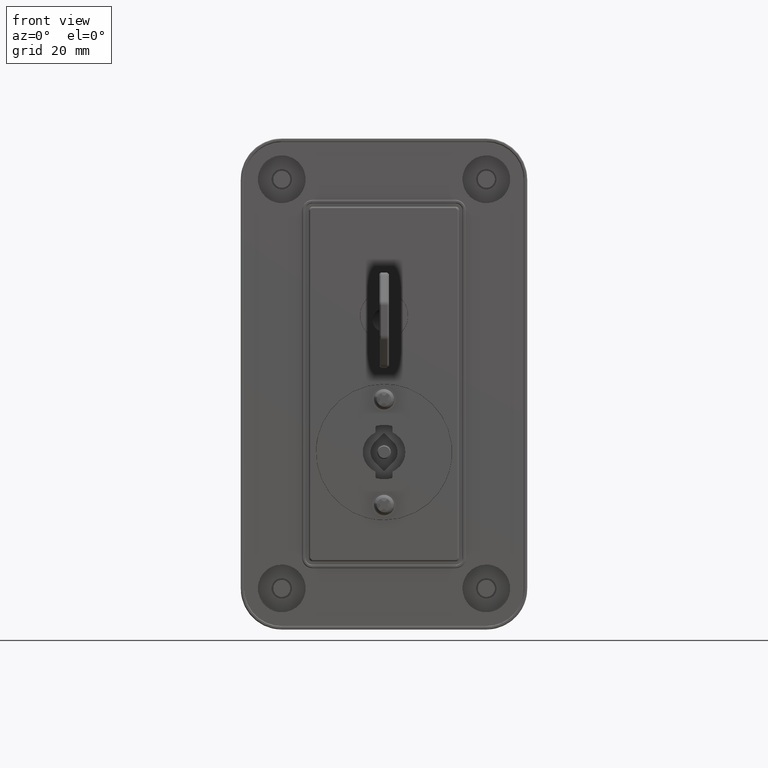
[diagram: clean part render]
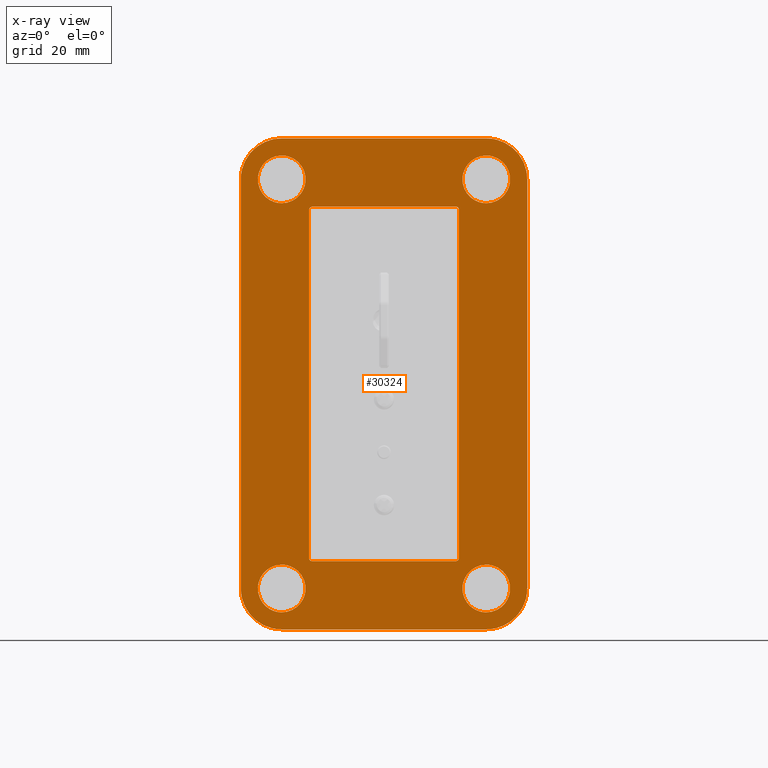
[diagram: x-ray — body ghosted, one internal face saturated and labeled with its STEP entity id]
A machine part, front view, then the same camera in x-ray: the body is ghosted and one INTERNAL B-rep face — a face not visible from any outside direction — is saturated and labeled: STEP entity #30324.
In plain terms, the highlighted face is a freeform B-spline surface patch.
Its self-contained STEP definition (entity closure, byte-faithful):
#25757=CARTESIAN_POINT('',(-26.899999996991902,23.048933315404579,79.173742690876992));
#25758=VERTEX_POINT('',#25757);
#25764=CARTESIAN_POINT('',(-26.899999996991902,29.999999999914301,86.999982333776700));
#25765=VERTEX_POINT('',#25764);
#25766=CARTESIAN_POINT('',(-26.899999996991902,23.048933315404582,79.173742690876992));
#25767=CARTESIAN_POINT('',(-26.899999996991895,22.999999999914298,79.585413495907716));
#25768=CARTESIAN_POINT('',(-26.899999996991902,22.999999999914301,79.999982333776700));
#25769=CARTESIAN_POINT('',(-26.899999996991902,22.999999999914298,86.999982333776700));
#25770=CARTESIAN_POINT('',(-26.899999996991902,29.999999999914301,86.999982333776700));
#25778=(BOUNDED_CURVE()B_SPLINE_CURVE(2,(#25766,#25767,#25768,#25769,#25770),.UNSPECIFIED.,.F.,.U.)B_SPLINE_CURVE_WITH_KNOTS((3,2,3),(0.229562473500939,0.250000000000000,0.500000000000000),.UNSPECIFIED.)CURVE()GEOMETRIC_REPRESENTATION_ITEM()RATIONAL_B_SPLINE_CURVE((0.956026754159064,0.976055948316420,1.0,0.707106781186547,1.0))REPRESENTATION_ITEM(''));
#25779=EDGE_CURVE('',#25758,#25765,#25778,.T.);
#25781=CARTESIAN_POINT('',(-26.899999996991902,36.986943588840191,80.427322110965108));
#25782=VERTEX_POINT('',#25781);
#25783=CARTESIAN_POINT('',(-26.899999996991902,29.999999999914301,86.999982333776700));
#25784=CARTESIAN_POINT('',(-26.899999996991909,36.584942467414905,86.999982333776700));
#25785=CARTESIAN_POINT('',(-26.899999996991902,36.986943588840191,80.427322110965108));
#25793=(BOUNDED_CURVE()B_SPLINE_CURVE(2,(#25783,#25784,#25785),.UNSPECIFIED.,.F.,.U.)B_SPLINE_CURVE_WITH_KNOTS((3,3),(0.500000000000000,0.739332962220018),.UNSPECIFIED.)CURVE()GEOMETRIC_REPRESENTATION_ITEM()RATIONAL_B_SPLINE_CURVE((1.0,0.719603993308882,0.976072041626158))REPRESENTATION_ITEM(''));
#25794=EDGE_CURVE('',#25765,#25782,#25793,.T.);
#25868=CARTESIAN_POINT('',(-26.899999996991902,29.999999999914301,72.999982333776686));
#25869=VERTEX_POINT('',#25868);
#25870=CARTESIAN_POINT('',(-26.899999996991905,36.986943588840191,80.427322110965108));
#25871=CARTESIAN_POINT('',(-26.899999996991895,36.999999999914301,80.213851677312476));
#25872=CARTESIAN_POINT('',(-26.899999996991902,36.999999999914301,79.999982333776700));
#25873=CARTESIAN_POINT('',(-26.899999996991902,36.999999999914309,72.999982333776686));
#25874=CARTESIAN_POINT('',(-26.899999996991902,29.999999999914301,72.999982333776686));
#25882=(BOUNDED_CURVE()B_SPLINE_CURVE(2,(#25870,#25871,#25872,#25873,#25874),.UNSPECIFIED.,.F.,.U.)B_SPLINE_CURVE_WITH_KNOTS((3,2,3),(0.739332962220019,0.750000000000000,1.0),.UNSPECIFIED.)CURVE()GEOMETRIC_REPRESENTATION_ITEM()RATIONAL_B_SPLINE_CURVE((0.976072041626159,0.987502787877666,1.0,0.707106781186547,1.0))REPRESENTATION_ITEM(''));
#25883=EDGE_CURVE('',#25782,#25869,#25882,.T.);
#25885=CARTESIAN_POINT('',(-26.899999996991902,29.999999999914301,72.999982333776686));
#25886=CARTESIAN_POINT('',(-26.899999996991905,23.782778318799494,72.999982333776700));
#25887=CARTESIAN_POINT('',(-26.899999996991902,23.048933315404582,79.173742690876992));
#25895=(BOUNDED_CURVE()B_SPLINE_CURVE(2,(#25885,#25886,#25887),.UNSPECIFIED.,.F.,.U.)B_SPLINE_CURVE_WITH_KNOTS((3,3),(0.0,0.229562473500939),.UNSPECIFIED.)CURVE()GEOMETRIC_REPRESENTATION_ITEM()RATIONAL_B_SPLINE_CURVE((1.0,0.731050832870128,0.956026754159064))REPRESENTATION_ITEM(''));
#25896=EDGE_CURVE('',#25869,#25758,#25895,.T.);
#25943=CARTESIAN_POINT('',(-26.899999996991902,-36.951066684332467,79.173742690894500));
#25944=VERTEX_POINT('',#25943);
#25950=CARTESIAN_POINT('',(-26.899999996991902,-29.999999999822752,86.999982333794208));
#25951=VERTEX_POINT('',#25950);
#25952=CARTESIAN_POINT('',(-26.899999996991898,-36.951066684332474,79.173742690894500));
#25953=CARTESIAN_POINT('',(-26.899999996991895,-36.999999999822755,79.585413495925238));
#25954=CARTESIAN_POINT('',(-26.899999996991902,-36.999999999822748,79.999982333794193));
#25955=CARTESIAN_POINT('',(-26.899999996991902,-36.999999999822748,86.999982333794222));
#25956=CARTESIAN_POINT('',(-26.899999996991902,-29.999999999822752,86.999982333794208));
#25964=(BOUNDED_CURVE()B_SPLINE_CURVE(2,(#25952,#25953,#25954,#25955,#25956),.UNSPECIFIED.,.F.,.U.)B_SPLINE_CURVE_WITH_KNOTS((3,2,3),(0.229562473500940,0.250000000000000,0.500000000000000),.UNSPECIFIED.)CURVE()GEOMETRIC_REPRESENTATION_ITEM()RATIONAL_B_SPLINE_CURVE((0.956026754159064,0.976055948316420,1.0,0.707106781186547,1.0))REPRESENTATION_ITEM(''));
#25965=EDGE_CURVE('',#25944,#25951,#25964,.T.);
#25967=CARTESIAN_POINT('',(-26.899999996991902,-23.013056410896869,80.427322110982601));
#25968=VERTEX_POINT('',#25967);
#25969=CARTESIAN_POINT('',(-26.899999996991902,-29.999999999822752,86.999982333794208));
#25970=CARTESIAN_POINT('',(-26.899999996991909,-23.415057532322141,86.999982333794222));
#25971=CARTESIAN_POINT('',(-26.899999996991902,-23.013056410896866,80.427322110982601));
#25979=(BOUNDED_CURVE()B_SPLINE_CURVE(2,(#25969,#25970,#25971),.UNSPECIFIED.,.F.,.U.)B_SPLINE_CURVE_WITH_KNOTS((3,3),(0.500000000000000,0.739332962220018),.UNSPECIFIED.)CURVE()GEOMETRIC_REPRESENTATION_ITEM()RATIONAL_B_SPLINE_CURVE((1.0,0.719603993308882,0.976072041626158))REPRESENTATION_ITEM(''));
#25980=EDGE_CURVE('',#25951,#25968,#25979,.T.);
#26054=CARTESIAN_POINT('',(-26.899999996991902,-29.999999999822752,72.999982333794193));
#26055=VERTEX_POINT('',#26054);
#26056=CARTESIAN_POINT('',(-26.899999996991905,-23.013056410896866,80.427322110982601));
#26057=CARTESIAN_POINT('',(-26.899999996991895,-22.999999999822752,80.213851677329956));
#26058=CARTESIAN_POINT('',(-26.899999996991902,-22.999999999822752,79.999982333794193));
#26059=CARTESIAN_POINT('',(-26.899999996991902,-22.999999999822755,72.999982333794193));
#26060=CARTESIAN_POINT('',(-26.899999996991902,-29.999999999822752,72.999982333794193));
#26068=(BOUNDED_CURVE()B_SPLINE_CURVE(2,(#26056,#26057,#26058,#26059,#26060),.UNSPECIFIED.,.F.,.U.)B_SPLINE_CURVE_WITH_KNOTS((3,2,3),(0.739332962220019,0.750000000000000,1.0),.UNSPECIFIED.)CURVE()GEOMETRIC_REPRESENTATION_ITEM()RATIONAL_B_SPLINE_CURVE((0.976072041626159,0.987502787877666,1.0,0.707106781186547,1.0))REPRESENTATION_ITEM(''));
#26069=EDGE_CURVE('',#25968,#26055,#26068,.T.);
#26071=CARTESIAN_POINT('',(-26.899999996991902,-29.999999999822752,72.999982333794193));
#26072=CARTESIAN_POINT('',(-26.899999996991898,-36.217221680937577,72.999982333794193));
#26073=CARTESIAN_POINT('',(-26.899999996991909,-36.951066684332474,79.173742690894500));
#26081=(BOUNDED_CURVE()B_SPLINE_CURVE(2,(#26071,#26072,#26073),.UNSPECIFIED.,.F.,.U.)B_SPLINE_CURVE_WITH_KNOTS((3,3),(0.0,0.229562473500940),.UNSPECIFIED.)CURVE()GEOMETRIC_REPRESENTATION_ITEM()RATIONAL_B_SPLINE_CURVE((1.0,0.731050832870127,0.956026754159065))REPRESENTATION_ITEM(''));
#26082=EDGE_CURVE('',#26055,#25944,#26081,.T.);
#26129=CARTESIAN_POINT('',(-26.899999996991902,23.048933315498431,-40.826257309240468));
#26130=VERTEX_POINT('',#26129);
#26136=CARTESIAN_POINT('',(-26.899999996991902,30.000000000008150,-33.000017666340753));
#26137=VERTEX_POINT('',#26136);
#26138=CARTESIAN_POINT('',(-26.899999996991905,23.048933315498438,-40.826257309240468));
#26139=CARTESIAN_POINT('',(-26.899999996991891,23.000000000008150,-40.414586504209723));
#26140=CARTESIAN_POINT('',(-26.899999996991902,23.000000000008150,-40.000017666340753));
#26141=CARTESIAN_POINT('',(-26.899999996991902,23.000000000008157,-33.000017666340753));
#26142=CARTESIAN_POINT('',(-26.899999996991902,30.000000000008150,-33.000017666340753));
#26150=(BOUNDED_CURVE()B_SPLINE_CURVE(2,(#26138,#26139,#26140,#26141,#26142),.UNSPECIFIED.,.F.,.U.)B_SPLINE_CURVE_WITH_KNOTS((3,2,3),(0.229562473500940,0.250000000000000,0.500000000000000),.UNSPECIFIED.)CURVE()GEOMETRIC_REPRESENTATION_ITEM()RATIONAL_B_SPLINE_CURVE((0.956026754159064,0.976055948316420,1.0,0.707106781186547,1.0))REPRESENTATION_ITEM(''));
#26151=EDGE_CURVE('',#26130,#26137,#26150,.T.);
#26153=CARTESIAN_POINT('',(-26.899999996991902,36.986943588934039,-39.572677889152359));
#26154=VERTEX_POINT('',#26153);
#26155=CARTESIAN_POINT('',(-26.899999996991902,30.000000000008150,-33.000017666340753));
#26156=CARTESIAN_POINT('',(-26.899999996991909,36.584942467508746,-33.000017666340753));
#26157=CARTESIAN_POINT('',(-26.899999996991902,36.986943588934039,-39.572677889152367));
#26165=(BOUNDED_CURVE()B_SPLINE_CURVE(2,(#26155,#26156,#26157),.UNSPECIFIED.,.F.,.U.)B_SPLINE_CURVE_WITH_KNOTS((3,3),(0.500000000000000,0.739332962220018),.UNSPECIFIED.)CURVE()GEOMETRIC_REPRESENTATION_ITEM()RATIONAL_B_SPLINE_CURVE((1.0,0.719603993308882,0.976072041626158))REPRESENTATION_ITEM(''));
#26166=EDGE_CURVE('',#26137,#26154,#26165,.T.);
#26240=CARTESIAN_POINT('',(-26.899999996991902,30.000000000008150,-47.000017666340753));
#26241=VERTEX_POINT('',#26240);
#26242=CARTESIAN_POINT('',(-26.899999996991902,36.986943588934039,-39.572677889152359));
#26243=CARTESIAN_POINT('',(-26.899999996991895,37.000000000008157,-39.786148322804991));
#26244=CARTESIAN_POINT('',(-26.899999996991902,37.000000000008150,-40.000017666340753));
#26245=CARTESIAN_POINT('',(-26.899999996991902,37.000000000008150,-47.000017666340753));
#26246=CARTESIAN_POINT('',(-26.899999996991902,30.000000000008150,-47.000017666340753));
#26254=(BOUNDED_CURVE()B_SPLINE_CURVE(2,(#26242,#26243,#26244,#26245,#26246),.UNSPECIFIED.,.F.,.U.)B_SPLINE_CURVE_WITH_KNOTS((3,2,3),(0.739332962220019,0.750000000000000,1.0),.UNSPECIFIED.)CURVE()GEOMETRIC_REPRESENTATION_ITEM()RATIONAL_B_SPLINE_CURVE((0.976072041626160,0.987502787877667,1.0,0.707106781186547,1.0))REPRESENTATION_ITEM(''));
#26255=EDGE_CURVE('',#26154,#26241,#26254,.T.);
#26257=CARTESIAN_POINT('',(-26.899999996991902,30.000000000008150,-47.000017666340753));
#26258=CARTESIAN_POINT('',(-26.899999996991905,23.782778318893346,-47.000017666340753));
#26259=CARTESIAN_POINT('',(-26.899999996991902,23.048933315498431,-40.826257309240468));
#26267=(BOUNDED_CURVE()B_SPLINE_CURVE(2,(#26257,#26258,#26259),.UNSPECIFIED.,.F.,.U.)B_SPLINE_CURVE_WITH_KNOTS((3,3),(0.0,0.229562473500939),.UNSPECIFIED.)CURVE()GEOMETRIC_REPRESENTATION_ITEM()RATIONAL_B_SPLINE_CURVE((1.0,0.731050832870128,0.956026754159064))REPRESENTATION_ITEM(''));
#26268=EDGE_CURVE('',#26241,#26130,#26267,.T.);
#26315=CARTESIAN_POINT('',(-26.899999996991902,-36.951066684496872,-40.826257309223067));
#26316=VERTEX_POINT('',#26315);
#26322=CARTESIAN_POINT('',(-26.899999996991902,-29.999999999987150,-33.000017666323352));
#26323=VERTEX_POINT('',#26322);
#26324=CARTESIAN_POINT('',(-26.899999996991902,-36.951066684496865,-40.826257309223067));
#26325=CARTESIAN_POINT('',(-26.899999996991902,-36.999999999987153,-40.414586504192322));
#26326=CARTESIAN_POINT('',(-26.899999996991902,-36.999999999987153,-40.000017666323352));
#26327=CARTESIAN_POINT('',(-26.899999996991902,-36.999999999987146,-33.000017666323359));
#26328=CARTESIAN_POINT('',(-26.899999996991902,-29.999999999987150,-33.000017666323352));
#26336=(BOUNDED_CURVE()B_SPLINE_CURVE(2,(#26324,#26325,#26326,#26327,#26328),.UNSPECIFIED.,.F.,.U.)B_SPLINE_CURVE_WITH_KNOTS((3,2,3),(0.229562473500940,0.250000000000000,0.500000000000000),.UNSPECIFIED.)CURVE()GEOMETRIC_REPRESENTATION_ITEM()RATIONAL_B_SPLINE_CURVE((0.956026754159064,0.976055948316420,1.0,0.707106781186547,1.0))REPRESENTATION_ITEM(''));
#26337=EDGE_CURVE('',#26316,#26323,#26336,.T.);
#26339=CARTESIAN_POINT('',(-26.899999996991902,-23.013056411061260,-39.572677889134951));
#26340=VERTEX_POINT('',#26339);
#26341=CARTESIAN_POINT('',(-26.899999996991902,-29.999999999987150,-33.000017666323352));
#26342=CARTESIAN_POINT('',(-26.899999996991909,-23.415057532486550,-33.000017666323352));
#26343=CARTESIAN_POINT('',(-26.899999996991902,-23.013056411061264,-39.572677889134951));
#26351=(BOUNDED_CURVE()B_SPLINE_CURVE(2,(#26341,#26342,#26343),.UNSPECIFIED.,.F.,.U.)B_SPLINE_CURVE_WITH_KNOTS((3,3),(0.500000000000000,0.739332962220018),.UNSPECIFIED.)CURVE()GEOMETRIC_REPRESENTATION_ITEM()RATIONAL_B_SPLINE_CURVE((1.0,0.719603993308882,0.976072041626158))REPRESENTATION_ITEM(''));
#26352=EDGE_CURVE('',#26323,#26340,#26351,.T.);
#26426=CARTESIAN_POINT('',(-26.899999996991902,-29.999999999987150,-47.000017666323352));
#26427=VERTEX_POINT('',#26426);
#26428=CARTESIAN_POINT('',(-26.899999996991898,-23.013056411061264,-39.572677889134951));
#26429=CARTESIAN_POINT('',(-26.899999996991902,-22.999999999987153,-39.786148322787575));
#26430=CARTESIAN_POINT('',(-26.899999996991902,-22.999999999987150,-40.000017666323352));
#26431=CARTESIAN_POINT('',(-26.899999996991902,-22.999999999987153,-47.000017666323352));
#26432=CARTESIAN_POINT('',(-26.899999996991902,-29.999999999987150,-47.000017666323352));
#26440=(BOUNDED_CURVE()B_SPLINE_CURVE(2,(#26428,#26429,#26430,#26431,#26432),.UNSPECIFIED.,.F.,.U.)B_SPLINE_CURVE_WITH_KNOTS((3,2,3),(0.739332962220019,0.750000000000000,1.0),.UNSPECIFIED.)CURVE()GEOMETRIC_REPRESENTATION_ITEM()RATIONAL_B_SPLINE_CURVE((0.976072041626160,0.987502787877666,1.0,0.707106781186547,1.0))REPRESENTATION_ITEM(''));
#26441=EDGE_CURVE('',#26340,#26427,#26440,.T.);
#26443=CARTESIAN_POINT('',(-26.899999996991902,-29.999999999987150,-47.000017666323352));
#26444=CARTESIAN_POINT('',(-26.899999996991902,-36.217221681101975,-47.000017666323359));
#26445=CARTESIAN_POINT('',(-26.899999996991905,-36.951066684496865,-40.826257309223074));
#26453=(BOUNDED_CURVE()B_SPLINE_CURVE(2,(#26443,#26444,#26445),.UNSPECIFIED.,.F.,.U.)B_SPLINE_CURVE_WITH_KNOTS((3,3),(0.0,0.229562473500940),.UNSPECIFIED.)CURVE()GEOMETRIC_REPRESENTATION_ITEM()RATIONAL_B_SPLINE_CURVE((1.0,0.731050832870128,0.956026754159064))REPRESENTATION_ITEM(''));
#26454=EDGE_CURVE('',#26427,#26316,#26453,.T.);
#29954=CARTESIAN_POINT('',(-26.899999996991902,-21.999999999956898,70.999982333678290));
#29955=VERTEX_POINT('',#29954);
#29962=CARTESIAN_POINT('',(-26.899999996991902,-21.999999999986802,-31.000017666322151));
#29963=VERTEX_POINT('',#29962);
#29969=CARTESIAN_POINT('',(-26.899999996991902,-21.999999999986802,-31.000017666322151));
#29970=CARTESIAN_POINT('',(-26.899999996991902,-21.999999999956898,70.999982333678290));
#29971=QUASI_UNIFORM_CURVE('',1,(#29969,#29970),.UNSPECIFIED.,.F.,.U.);
#29972=EDGE_CURVE('',#29963,#29955,#29971,.T.);
#29993=CARTESIAN_POINT('',(-26.899999996991902,-20.999999999986802,-32.000017666322151));
#29994=VERTEX_POINT('',#29993);
#30000=CARTESIAN_POINT('',(-26.899999996991902,-20.999999999986802,-32.000017666322151));
#30001=CARTESIAN_POINT('',(-26.899999996991898,-21.999999999986798,-32.000017666322158));
#30002=CARTESIAN_POINT('',(-26.899999996991902,-21.999999999986802,-31.000017666322151));
#30010=(BOUNDED_CURVE()B_SPLINE_CURVE(2,(#30000,#30001,#30002),.UNSPECIFIED.,.F.,.U.)CURVE()GEOMETRIC_REPRESENTATION_ITEM()QUASI_UNIFORM_CURVE()RATIONAL_B_SPLINE_CURVE((1.0,0.707106781186548,1.0))REPRESENTATION_ITEM(''));
#30011=EDGE_CURVE('',#29994,#29963,#30010,.T.);
#30023=CARTESIAN_POINT('',(-26.899999996991902,21.000000000013149,-32.000017666289153));
#30024=VERTEX_POINT('',#30023);
#30030=CARTESIAN_POINT('',(-26.899999996991902,21.000000000013149,-32.000017666289153));
#30031=CARTESIAN_POINT('',(-26.899999996991902,-20.999999999986802,-32.000017666322151));
#30032=QUASI_UNIFORM_CURVE('',1,(#30030,#30031),.UNSPECIFIED.,.F.,.U.);
#30033=EDGE_CURVE('',#30024,#29994,#30032,.T.);
#30054=CARTESIAN_POINT('',(-26.899999996991902,22.000000000013149,-31.000017666289452));
#30055=VERTEX_POINT('',#30054);
#30061=CARTESIAN_POINT('',(-26.899999996991902,22.000000000013149,-31.000017666289452));
#30062=CARTESIAN_POINT('',(-26.899999996991905,22.000000000012808,-32.000017666289104));
#30063=CARTESIAN_POINT('',(-26.899999996991902,21.000000000013149,-32.000017666289096));
#30071=(BOUNDED_CURVE()B_SPLINE_CURVE(2,(#30061,#30062,#30063),.UNSPECIFIED.,.F.,.U.)CURVE()GEOMETRIC_REPRESENTATION_ITEM()QUASI_UNIFORM_CURVE()RATIONAL_B_SPLINE_CURVE((1.0,0.707106781186671,1.0))REPRESENTATION_ITEM(''));
#30072=EDGE_CURVE('',#30055,#30024,#30071,.T.);
#30084=CARTESIAN_POINT('',(-26.899999996991902,22.000000000043102,70.999982333711003));
#30085=VERTEX_POINT('',#30084);
#30091=CARTESIAN_POINT('',(-26.899999996991902,22.000000000043102,70.999982333711003));
#30092=CARTESIAN_POINT('',(-26.899999996991902,22.000000000013149,-31.000017666289452));
#30093=QUASI_UNIFORM_CURVE('',1,(#30091,#30092),.UNSPECIFIED.,.F.,.U.);
#30094=EDGE_CURVE('',#30085,#30055,#30093,.T.);
#30115=CARTESIAN_POINT('',(-26.899999996991902,21.000000000042299,71.999982333711003));
#30116=VERTEX_POINT('',#30115);
#30122=CARTESIAN_POINT('',(-26.899999996991902,21.000000000042299,71.999982333711003));
#30123=CARTESIAN_POINT('',(-26.899999996991895,21.414213562415629,71.999982333711344));
#30124=CARTESIAN_POINT('',(-26.899999996991902,21.707106781229371,71.707089114897840));
#30125=CARTESIAN_POINT('',(-26.899999996991895,22.000000000043105,71.414195896084337));
#30126=CARTESIAN_POINT('',(-26.899999996991902,22.000000000043102,70.999982333711003));
#30134=(BOUNDED_CURVE()B_SPLINE_CURVE(2,(#30122,#30123,#30124,#30125,#30126),.UNSPECIFIED.,.F.,.U.)B_SPLINE_CURVE_WITH_KNOTS((3,2,3),(0.0,0.500000000000000,1.0),.UNSPECIFIED.)CURVE()GEOMETRIC_REPRESENTATION_ITEM()RATIONAL_B_SPLINE_CURVE((1.0,0.923879532511210,1.0,0.923879532511210,1.0))REPRESENTATION_ITEM(''));
#30135=EDGE_CURVE('',#30116,#30085,#30134,.T.);
#30147=CARTESIAN_POINT('',(-26.899999996991902,-20.999999999957701,71.999982333677892));
#30148=VERTEX_POINT('',#30147);
#30154=CARTESIAN_POINT('',(-26.899999996991902,-20.999999999957701,71.999982333677892));
#30155=CARTESIAN_POINT('',(-26.899999996991902,21.000000000042299,71.999982333711003));
#30156=QUASI_UNIFORM_CURVE('',1,(#30154,#30155),.UNSPECIFIED.,.F.,.U.);
#30157=EDGE_CURVE('',#30148,#30116,#30156,.T.);
#30179=CARTESIAN_POINT('',(-26.899999996991902,-21.999999999956952,70.999982333678290));
#30180=CARTESIAN_POINT('',(-26.899999996991902,-21.999999999956550,71.999982333677139));
#30181=CARTESIAN_POINT('',(-26.899999996991902,-20.999999999957701,71.999982333677892));
#30189=(BOUNDED_CURVE()B_SPLINE_CURVE(2,(#30179,#30180,#30181),.UNSPECIFIED.,.F.,.U.)CURVE()GEOMETRIC_REPRESENTATION_ITEM()QUASI_UNIFORM_CURVE()RATIONAL_B_SPLINE_CURVE((1.0,0.707106781186956,1.0))REPRESENTATION_ITEM(''));
#30190=EDGE_CURVE('',#29955,#30148,#30189,.T.);
#30195=CARTESIAN_POINT('',(-26.899999996991902,46.195799837199900,99.192784758097076));
#30196=CARTESIAN_POINT('',(-26.899999996991902,-46.195802090239120,99.192784758097076));
#30197=CARTESIAN_POINT('',(-26.899999996991902,46.195799837199900,-59.192821378239067));
#30198=CARTESIAN_POINT('',(-26.899999996991902,-46.195802090239120,-59.192821378239067));
#30199=B_SPLINE_SURFACE_WITH_KNOTS('',1,1,((#30195,#30197),(#30196,#30198)),.UNSPECIFIED.,.F.,.F.,.U.,(2,2),(2,2),(0.0,92.391601927439012),(0.0,158.385606136336210),.UNSPECIFIED.);
#30200=CARTESIAN_POINT('',(-26.899999996991902,30.000000000008200,91.999982333658906));
#30201=VERTEX_POINT('',#30200);
#30202=CARTESIAN_POINT('',(-26.899999996991902,42.000000000008207,79.999982333776700));
#30203=VERTEX_POINT('',#30202);
#30204=CARTESIAN_POINT('',(-26.899999996991902,30.000000000008200,91.999982333659091));
#30205=CARTESIAN_POINT('',(-26.899999996991895,41.999999999890598,91.999982333659091));
#30206=CARTESIAN_POINT('',(-26.899999996991902,42.000000000008200,79.999982333776700));
#30214=(BOUNDED_CURVE()B_SPLINE_CURVE(2,(#30204,#30205,#30206),.UNSPECIFIED.,.F.,.U.)CURVE()GEOMETRIC_REPRESENTATION_ITEM()QUASI_UNIFORM_CURVE()RATIONAL_B_SPLINE_CURVE((1.0,0.707106781190012,1.0))REPRESENTATION_ITEM(''));
#30215=EDGE_CURVE('',#30201,#30203,#30214,.T.);
#30216=ORIENTED_EDGE('',*,*,#30215,.T.);
#30217=CARTESIAN_POINT('',(-26.899999996991902,42.000000000008157,-40.000017666340753));
#30218=VERTEX_POINT('',#30217);
#30219=CARTESIAN_POINT('',(-26.899999996991902,42.000000000008207,79.999982333776700));
#30220=CARTESIAN_POINT('',(-26.899999996991902,42.000000000008157,-40.000017666340753));
#30221=QUASI_UNIFORM_CURVE('',1,(#30219,#30220),.UNSPECIFIED.,.F.,.U.);
#30222=EDGE_CURVE('',#30203,#30218,#30221,.T.);
#30223=ORIENTED_EDGE('',*,*,#30222,.T.);
#30224=CARTESIAN_POINT('',(-26.899999996991902,30.000000000008150,-52.000017666340703));
#30225=VERTEX_POINT('',#30224);
#30226=CARTESIAN_POINT('',(-26.899999996991902,42.000000000008150,-40.000017666340753));
#30227=CARTESIAN_POINT('',(-26.899999996991898,42.000000000008150,-52.000017666340760));
#30228=CARTESIAN_POINT('',(-26.899999996991902,30.000000000008150,-52.000017666340753));
#30236=(BOUNDED_CURVE()B_SPLINE_CURVE(2,(#30226,#30227,#30228),.UNSPECIFIED.,.F.,.U.)CURVE()GEOMETRIC_REPRESENTATION_ITEM()QUASI_UNIFORM_CURVE()RATIONAL_B_SPLINE_CURVE((1.0,0.707106781186548,1.0))REPRESENTATION_ITEM(''));
#30237=EDGE_CURVE('',#30218,#30225,#30236,.T.);
#30238=ORIENTED_EDGE('',*,*,#30237,.T.);
#30239=CARTESIAN_POINT('',(-26.899999996991902,-29.999999999987150,-52.000017666340803));
#30240=VERTEX_POINT('',#30239);
#30241=CARTESIAN_POINT('',(-26.899999996991902,30.000000000008150,-52.000017666340703));
#30242=CARTESIAN_POINT('',(-26.899999996991902,-29.999999999987150,-52.000017666340803));
#30243=QUASI_UNIFORM_CURVE('',1,(#30241,#30242),.UNSPECIFIED.,.F.,.U.);
#30244=EDGE_CURVE('',#30225,#30240,#30243,.T.);
#30245=ORIENTED_EDGE('',*,*,#30244,.T.);
#30246=CARTESIAN_POINT('',(-26.899999996991902,-41.999999999991751,-40.000017666340753));
#30247=VERTEX_POINT('',#30246);
#30248=CARTESIAN_POINT('',(-26.899999996991902,-29.999999999987150,-52.000017666340803));
#30249=CARTESIAN_POINT('',(-26.899999996991898,-41.999999999991743,-52.000017666340760));
#30250=CARTESIAN_POINT('',(-26.899999996991902,-41.999999999991751,-40.000017666340753));
#30258=(BOUNDED_CURVE()B_SPLINE_CURVE(2,(#30248,#30249,#30250),.UNSPECIFIED.,.F.,.U.)CURVE()GEOMETRIC_REPRESENTATION_ITEM()QUASI_UNIFORM_CURVE()RATIONAL_B_SPLINE_CURVE((1.0,0.707106781186548,1.0))REPRESENTATION_ITEM(''));
#30259=EDGE_CURVE('',#30240,#30247,#30258,.T.);
#30260=ORIENTED_EDGE('',*,*,#30259,.T.);
#30261=CARTESIAN_POINT('',(-26.899999996991902,-41.999999999991850,79.999982333776700));
#30262=VERTEX_POINT('',#30261);
#30263=CARTESIAN_POINT('',(-26.899999996991902,-41.999999999991751,-40.000017666340753));
#30264=CARTESIAN_POINT('',(-26.899999996991902,-41.999999999991850,79.999982333776700));
#30265=QUASI_UNIFORM_CURVE('',1,(#30263,#30264),.UNSPECIFIED.,.F.,.U.);
#30266=EDGE_CURVE('',#30247,#30262,#30265,.T.);
#30267=ORIENTED_EDGE('',*,*,#30266,.T.);
#30268=CARTESIAN_POINT('',(-26.899999996991902,-29.999999999991751,91.999982333659105));
#30269=VERTEX_POINT('',#30268);
#30270=CARTESIAN_POINT('',(-26.899999996991902,-41.999999999991751,79.999982333776700));
#30271=CARTESIAN_POINT('',(-26.899999996991905,-41.999999999874142,91.999982333659105));
#30272=CARTESIAN_POINT('',(-26.899999996991902,-29.999999999991751,91.999982333659091));
#30280=(BOUNDED_CURVE()B_SPLINE_CURVE(2,(#30270,#30271,#30272),.UNSPECIFIED.,.F.,.U.)CURVE()GEOMETRIC_REPRESENTATION_ITEM()QUASI_UNIFORM_CURVE()RATIONAL_B_SPLINE_CURVE((1.0,0.707106781190012,1.0))REPRESENTATION_ITEM(''));
#30281=EDGE_CURVE('',#30262,#30269,#30280,.T.);
#30282=ORIENTED_EDGE('',*,*,#30281,.T.);
#30283=CARTESIAN_POINT('',(-26.899999996991902,-29.999999999991751,91.999982333659105));
#30284=CARTESIAN_POINT('',(-26.899999996991902,30.000000000008200,91.999982333658906));
#30285=QUASI_UNIFORM_CURVE('',1,(#30283,#30284),.UNSPECIFIED.,.F.,.U.);
#30286=EDGE_CURVE('',#30269,#30201,#30285,.T.);
#30287=ORIENTED_EDGE('',*,*,#30286,.T.);
#30288=EDGE_LOOP('',(#30216,#30223,#30238,#30245,#30260,#30267,#30282,#30287));
#30289=FACE_OUTER_BOUND('',#30288,.T.);
#30290=ORIENTED_EDGE('',*,*,#30190,.F.);
#30291=ORIENTED_EDGE('',*,*,#29972,.F.);
#30292=ORIENTED_EDGE('',*,*,#30011,.F.);
#30293=ORIENTED_EDGE('',*,*,#30033,.F.);
#30294=ORIENTED_EDGE('',*,*,#30072,.F.);
#30295=ORIENTED_EDGE('',*,*,#30094,.F.);
#30296=ORIENTED_EDGE('',*,*,#30135,.F.);
#30297=ORIENTED_EDGE('',*,*,#30157,.F.);
#30298=EDGE_LOOP('',(#30290,#30291,#30292,#30293,#30294,#30295,#30296,#30297));
#30299=FACE_BOUND('',#30298,.T.);
#30300=ORIENTED_EDGE('',*,*,#26352,.F.);
#30301=ORIENTED_EDGE('',*,*,#26337,.F.);
#30302=ORIENTED_EDGE('',*,*,#26454,.F.);
#30303=ORIENTED_EDGE('',*,*,#26441,.F.);
#30304=EDGE_LOOP('',(#30300,#30301,#30302,#30303));
#30305=FACE_BOUND('',#30304,.T.);
#30306=ORIENTED_EDGE('',*,*,#26166,.F.);
#30307=ORIENTED_EDGE('',*,*,#26151,.F.);
#30308=ORIENTED_EDGE('',*,*,#26268,.F.);
#30309=ORIENTED_EDGE('',*,*,#26255,.F.);
#30310=EDGE_LOOP('',(#30306,#30307,#30308,#30309));
#30311=FACE_BOUND('',#30310,.T.);
#30312=ORIENTED_EDGE('',*,*,#25980,.F.);
#30313=ORIENTED_EDGE('',*,*,#25965,.F.);
#30314=ORIENTED_EDGE('',*,*,#26082,.F.);
#30315=ORIENTED_EDGE('',*,*,#26069,.F.);
#30316=EDGE_LOOP('',(#30312,#30313,#30314,#30315));
#30317=FACE_BOUND('',#30316,.T.);
#30318=ORIENTED_EDGE('',*,*,#25794,.F.);
#30319=ORIENTED_EDGE('',*,*,#25779,.F.);
#30320=ORIENTED_EDGE('',*,*,#25896,.F.);
#30321=ORIENTED_EDGE('',*,*,#25883,.F.);
#30322=EDGE_LOOP('',(#30318,#30319,#30320,#30321));
#30323=FACE_BOUND('',#30322,.T.);
#30324=ADVANCED_FACE('',(#30289,#30299,#30305,#30311,#30317,#30323),#30199,.F.);